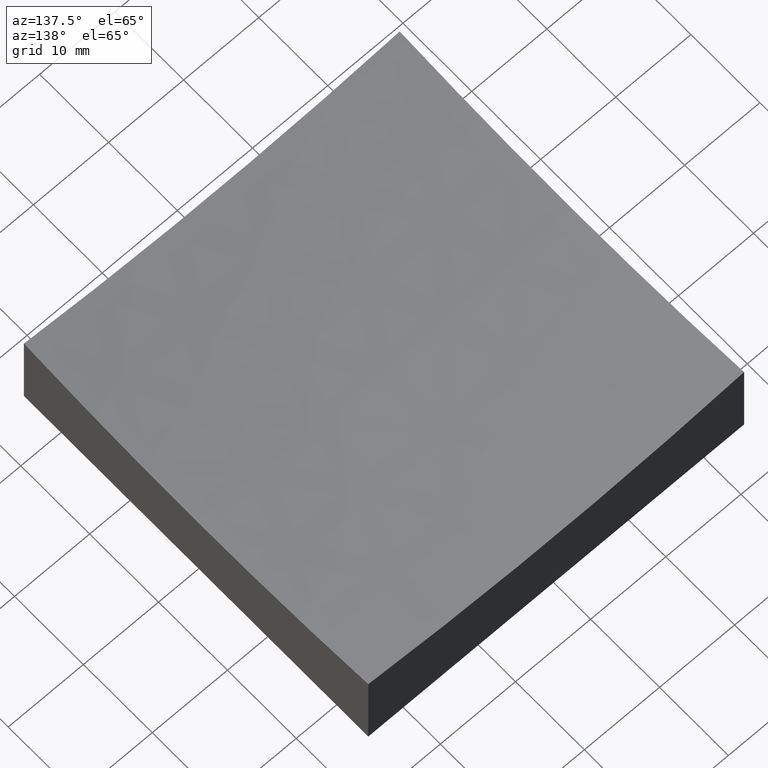
[diagram: clean part render]
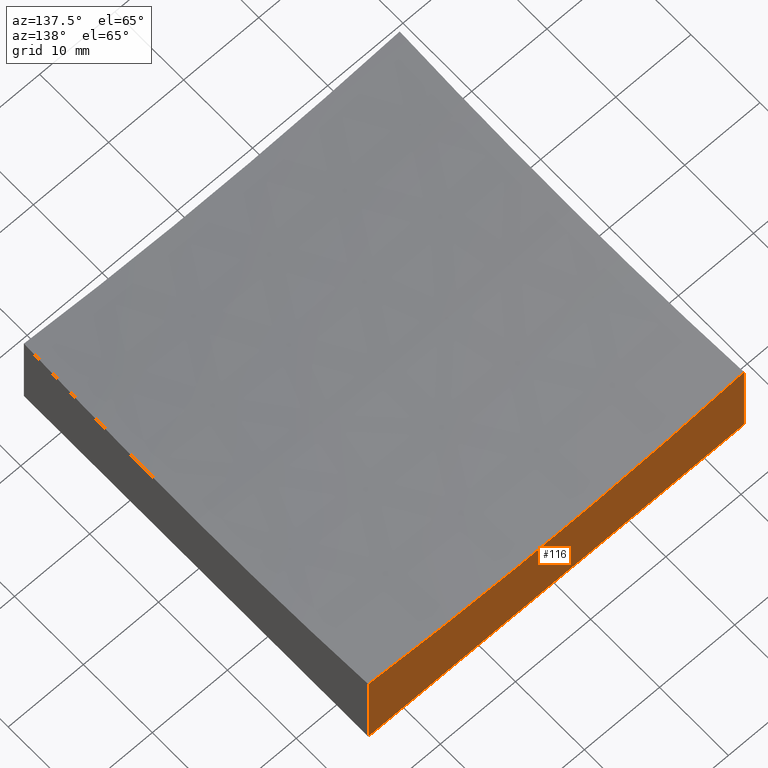
[diagram: same view with one face highlighted and labeled with its STEP entity id]
A machine part, auxiliary view. The second image highlights one B-rep face of the part: STEP entity #116.
In plain terms, the highlighted planar face has unit normal (0, 1, 0).
Its self-contained STEP definition (entity closure, byte-faithful):
#3 = VERTEX_POINT ( 'NONE', #214 ) ;
#7 = LINE ( 'NONE', #152, #205 ) ;
#9 = DIRECTION ( 'NONE',  ( 0.0000000000000000000, 1.000000000000000000, 0.0000000000000000000 ) ) ;
#19 = EDGE_CURVE ( 'NONE', #3, #59, #160, .T. ) ;
#35 = DIRECTION ( 'NONE',  ( 0.0000000000000000000, -0.0000000000000000000, 1.000000000000000000 ) ) ;
#38 = DIRECTION ( 'NONE',  ( -0.0000000000000000000, -0.0000000000000000000, -1.000000000000000000 ) ) ;
#46 = VERTEX_POINT ( 'NONE', #178 ) ;
#53 = FACE_OUTER_BOUND ( 'NONE', #193, .T. ) ;
#55 = DIRECTION ( 'NONE',  ( 0.0000000000000000000, 0.0000000000000000000, 1.000000000000000000 ) ) ;
#58 = CARTESIAN_POINT ( 'NONE',  ( -25.00000000000000355, 24.99999999999999645, 50.00000000000000000 ) ) ;
#59 = VERTEX_POINT ( 'NONE', #216 ) ;
#60 = AXIS2_PLACEMENT_3D ( 'NONE', #58, #192, #35 ) ;
#66 = CARTESIAN_POINT ( 'NONE',  ( 24.99999999999999645, 24.99999999999999645, 50.00000000000000000 ) ) ;
#71 = AXIS2_PLACEMENT_3D ( 'NONE', #226, #9, #55 ) ;
#75 = CARTESIAN_POINT ( 'NONE',  ( -25.00000000000000355, 24.99999999999999645, 50.00000000000000000 ) ) ;
#77 = EDGE_CURVE ( 'NONE', #3, #46, #177, .T. ) ;
#89 = ORIENTED_EDGE ( 'NONE', *, *, #19, .T. ) ;
#94 = EDGE_CURVE ( 'NONE', #95, #59, #7, .T. ) ;
#95 = VERTEX_POINT ( 'NONE', #132 ) ;
#97 = ORIENTED_EDGE ( 'NONE', *, *, #94, .F. ) ;
#114 = DIRECTION ( 'NONE',  ( 1.000000000000000000, 0.0000000000000000000, 0.0000000000000000000 ) ) ;
#116 = ADVANCED_FACE ( 'NONE', ( #53 ), #131, .T. ) ;
#131 = PLANE ( 'NONE',  #60 ) ;
#132 = CARTESIAN_POINT ( 'NONE',  ( -25.00000000000000355, 24.99999999999999645, 0.0000000000000000000 ) ) ;
#142 = DIRECTION ( 'NONE',  ( -0.0000000000000000000, -0.0000000000000000000, -1.000000000000000000 ) ) ;
#152 = CARTESIAN_POINT ( 'NONE',  ( -25.00000000000000355, 24.99999999999999645, 0.0000000000000000000 ) ) ;
#155 = VECTOR ( 'NONE', #38, 1000.000000000000000 ) ;
#160 = LINE ( 'NONE', #66, #162 ) ;
#162 = VECTOR ( 'NONE', #142, 1000.000000000000000 ) ;
#172 = ORIENTED_EDGE ( 'NONE', *, *, #77, .F. ) ;
#176 = EDGE_CURVE ( 'NONE', #46, #95, #243, .T. ) ;
#177 = CIRCLE ( 'NONE', #71, 198.4313483298443259 ) ;
#178 = CARTESIAN_POINT ( 'NONE',  ( -25.00000000000000711, 24.99999999999999645, 12.14980314970470765 ) ) ;
#192 = DIRECTION ( 'NONE',  ( 0.0000000000000000000, 1.000000000000000000, 0.0000000000000000000 ) ) ;
#193 = EDGE_LOOP ( 'NONE', ( #172, #89, #97, #248 ) ) ;
#205 = VECTOR ( 'NONE', #114, 1000.000000000000000 ) ;
#214 = CARTESIAN_POINT ( 'NONE',  ( 24.99999999999999645, 24.99999999999999645, 12.14980314970470765 ) ) ;
#216 = CARTESIAN_POINT ( 'NONE',  ( 24.99999999999999645, 24.99999999999999645, 0.0000000000000000000 ) ) ;
#226 = CARTESIAN_POINT ( 'NONE',  ( 2.559511810217968067E-14, 24.99999999999999645, 209.0000000000000284 ) ) ;
#243 = LINE ( 'NONE', #75, #155 ) ;
#248 = ORIENTED_EDGE ( 'NONE', *, *, #176, .F. ) ;